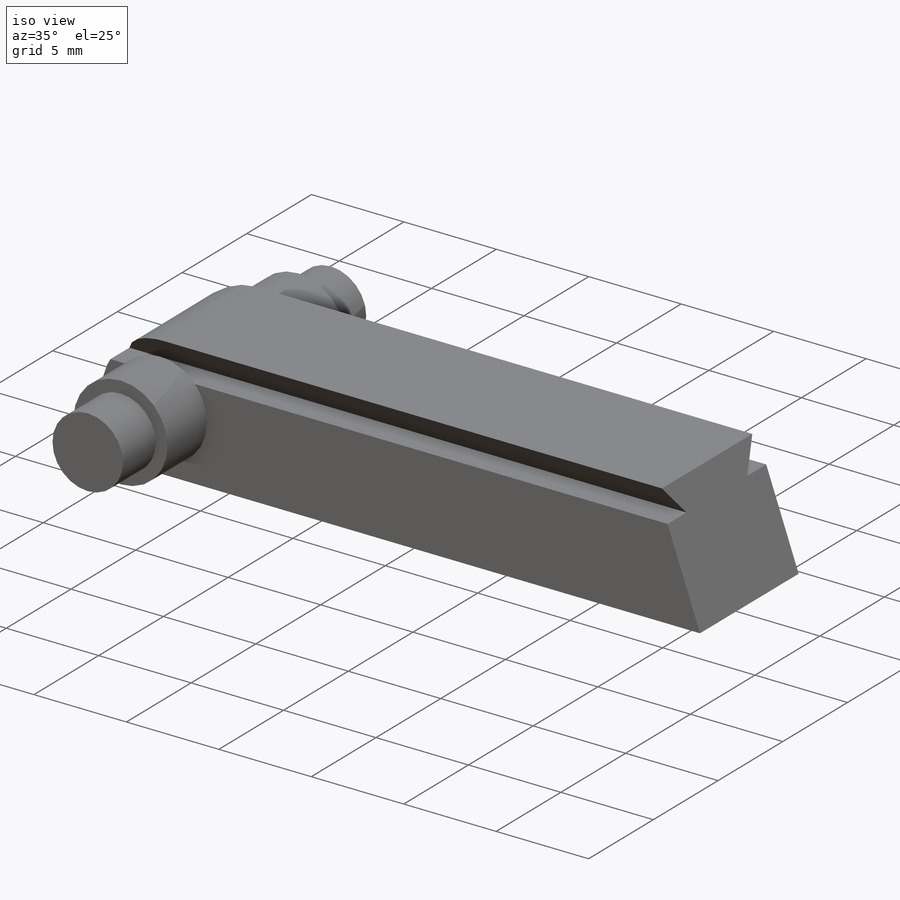
[diagram: iso view]
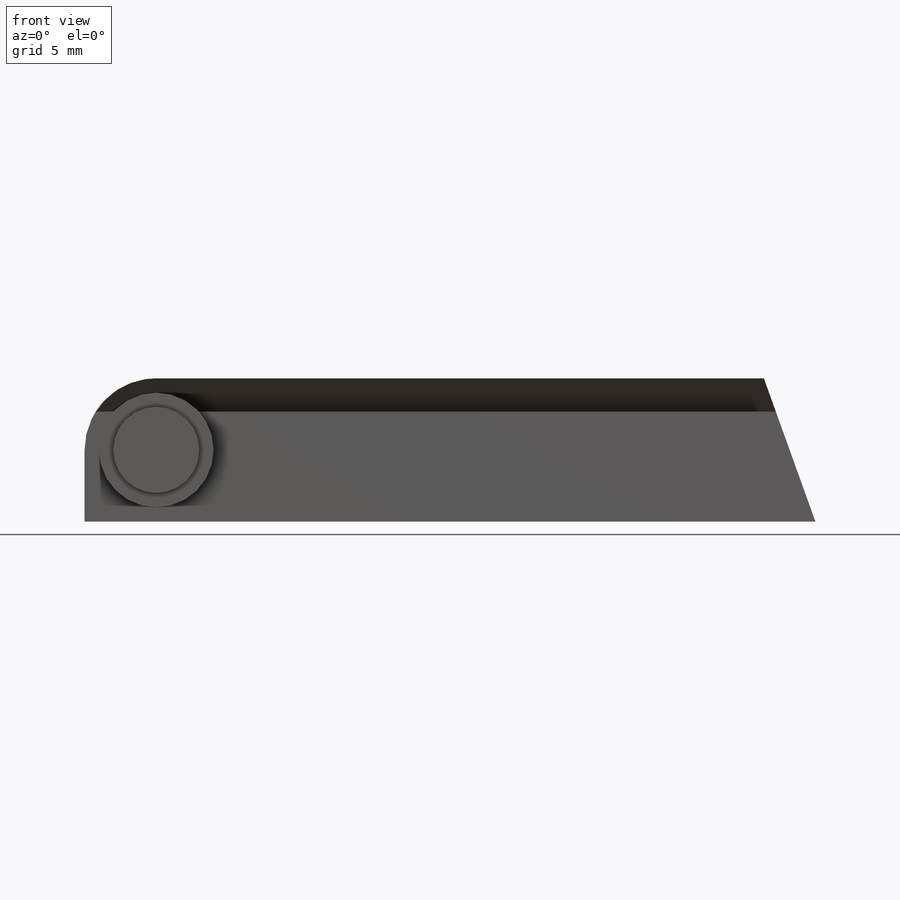
[diagram: front view]
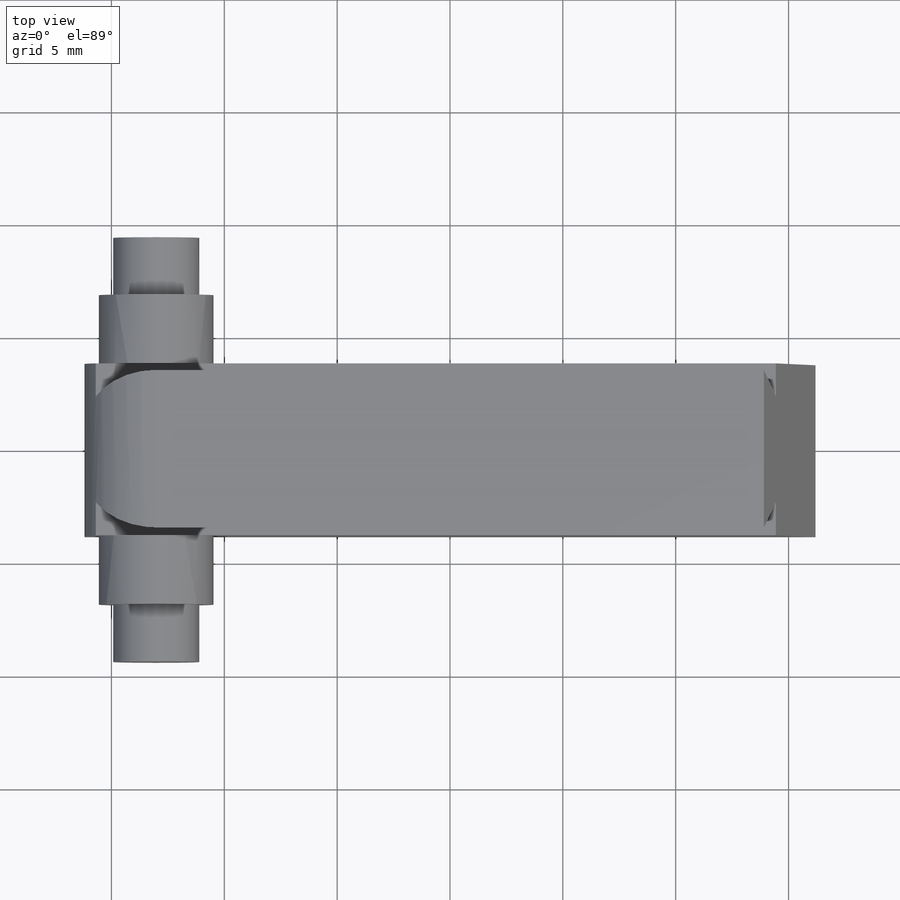
[diagram: top view]
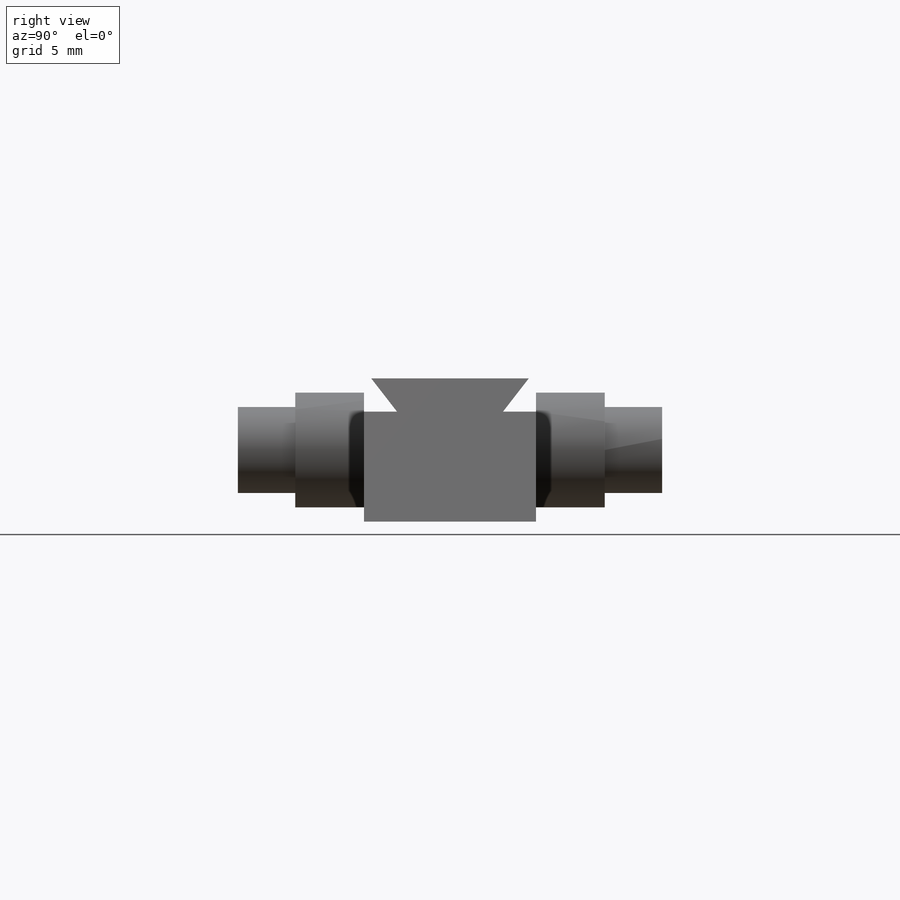
[diagram: right view]
SOLIDWORKS PART (.sldprt)
format: sldprt  version: not decoded by parser v0  size: 233,984 bytes
history: native  units: mm
features: sketch x5, extrude x4, material x1, cut_extrude x1, mirror x1 (+13 scaffold rows collapsed)
feature tree (25):
  scaffold x13  (default folders/planes/origin — collapsed)
  material  "Material <not specified>"
  sketch  "Sketch1"  dims[c1.D1=~45.240659mm c2.D1=90.0deg c3.D1=4.8768mm c3.D2=7.62mm]
  extrude  "Boss-Extrude1"  Depth=35.56mm
  sketch  "Sketch2"  dims[D1=6.985mm D2=4.699mm D3=0.0mm]
  extrude  "Boss-Extrude2"  Depth=32.385mm
  sketch  "Sketch3"  dims[c1.D1=2.286mm c1.D2=~6.748948mm c2.D2=~19.798876deg c3.D2=~6.748948mm c4.D2=~70.201124deg]
  cut_extrude  "Cut-Extrude1"  [1 undecoded]
  sketch  "Sketch5"  dims[D1=5.08mm]
  extrude  "Boss-Extrude3"  Depth=3.048mm
  sketch  "Sketch7"  dims[D1=4.572mm]
  extrude  "Boss-Extrude4"  Depth=2.54mm
  mirror  "Mirror1"
decode coverage: 9 of 11 modeling features carry decoded parameters
note: ~ marks probable driven/reference dimensions
note: 1 parameter value undecoded
note: suppression state not decoded; provenance and decode notes live in map.json
